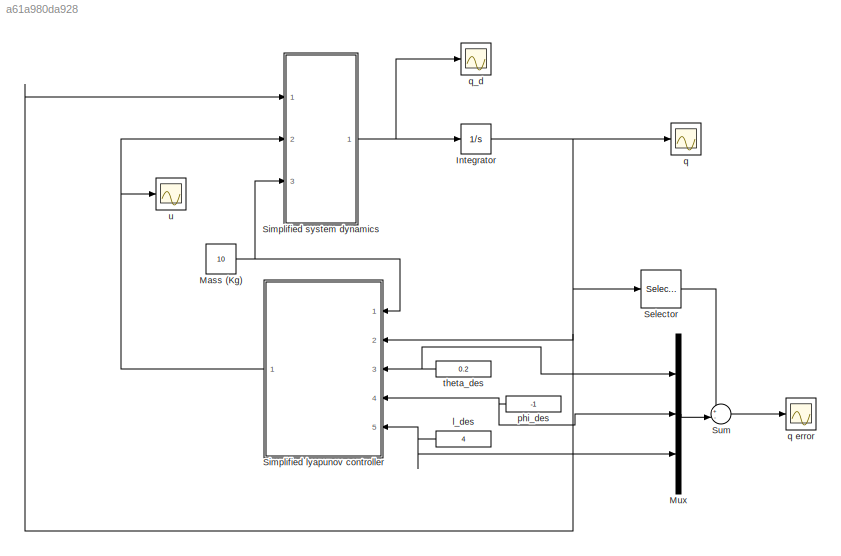
MODEL slx_a61a980da928
KIND model
CONFIG AbsTol = auto
CONFIG EnableMultiTasking = off
CONFIG FixedStep = auto
CONFIG MaxStep = auto
CONFIG MinStep = auto
CONFIG RelTol = 1e-3
CONFIG SampleTimeConstraint = Unconstrained
CONFIG Solver = VariableStepAuto
CONFIG SolverName = VariableStepAuto
CONFIG StartTime = 0.0
CONFIG StopTime = 10.0
BLOCK [Integrator] Integrator
  InitialCondition = [0.2, -0.4, 7, 1, -1, 0]
  Ports = [1, 1]
BLOCK [Constant] Mass (Kg)
  Value = 10
BLOCK [Mux] Mux
  DisplayOption = bar
  Inputs = 3
  Ports = [3, 1]
BLOCK [Selector] Selector
  IndexOptions = Index vector (dialog)
  Indices = [1 2 3]
  InputPortWidth = 6
  OutputSizes = 1
  Ports = [1, 1]
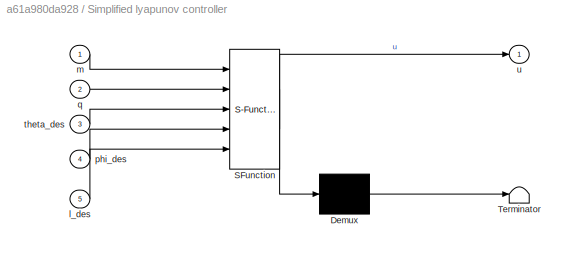
BLOCK [SubSystem] Simplified lyapunov controller
  ErrorFcn = Stateflow.Translate.translate
  PermitHierarchicalResolution = ExplicitOnly
  Ports = [5, 1]
  RequestExecContextInheritance = off
  SFBlockType = MATLAB Function
  TreatAsAtomicUnit = on
BLOCK [Demux] Simplified lyapunov controller/ Demux 
  Outputs = 1
  Ports = [1, 1]
BLOCK [S-Function] Simplified lyapunov controller/ SFunction 
  EnableBusSupport = on
  FunctionName = sf_sfun
  PortCounts = [5 2]
  Ports = [5, 2]
  SFcnIsStateOwnerBlock = off
  SFunctionDeploymentMode = off
  Tag = Stateflow S-Function 1
BLOCK [Terminator] Simplified lyapunov controller/ Terminator 
BLOCK [Inport] Simplified lyapunov controller/l_des
  Port = 5
BLOCK [Inport] Simplified lyapunov controller/m
BLOCK [Inport] Simplified lyapunov controller/phi_des
  Port = 4
BLOCK [Inport] Simplified lyapunov controller/q
  Port = 2
BLOCK [Inport] Simplified lyapunov controller/theta_des
  Port = 3
BLOCK [Outport] Simplified lyapunov controller/u
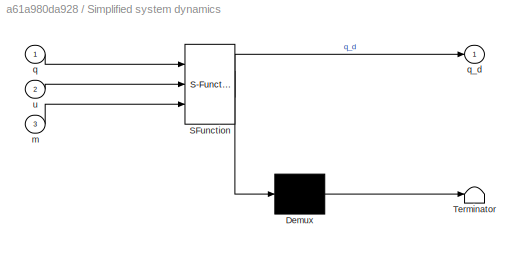
BLOCK [SubSystem] Simplified system dynamics
  ErrorFcn = Stateflow.Translate.translate
  PermitHierarchicalResolution = ExplicitOnly
  Ports = [3, 1]
  RequestExecContextInheritance = off
  SFBlockType = MATLAB Function
  TreatAsAtomicUnit = on
BLOCK [Demux] Simplified system dynamics/ Demux 
  Outputs = 1
  Ports = [1, 1]
BLOCK [S-Function] Simplified system dynamics/ SFunction 
  EnableBusSupport = on
  FunctionName = sf_sfun
  PortCounts = [3 2]
  Ports = [3, 2]
  SFcnIsStateOwnerBlock = off
  SFunctionDeploymentMode = off
  Tag = Stateflow S-Function 2
BLOCK [Terminator] Simplified system dynamics/ Terminator 
BLOCK [Inport] Simplified system dynamics/m
  Port = 3
BLOCK [Inport] Simplified system dynamics/q
BLOCK [Outport] Simplified system dynamics/q_d
BLOCK [Inport] Simplified system dynamics/u
  Port = 2
BLOCK [Sum] Sum
  Inputs = +-|
  Ports = [2, 1]
BLOCK [Constant] l_des
  Value = 4
BLOCK [Constant] phi_des
  Value = -1
BLOCK [Scope] q
  Floating = off
  NumInputPorts = 1
  Ports = [1]
  ScopeSpecificationString = Simulink.scopes.TimeScopeBlockCfg('CurrentConfiguration', extmgr.ConfigurationSet(extmgr.Configuration('Core','General UI',true),extmgr.Configuration('Core','Source UI',true),extmgr.Configuration('Sources','WiredSimulink',true),extmgr.Configuration('Visuals','Time Domain',true,'SerializedDisplays',{struct('MinYLimReal','-74051282.11979','MaxYLimReal','8227942.48762','YLabelReal','','MinYLimMag',' ...<+1671ch>
BLOCK [Scope] q error
  Floating = off
  NumInputPorts = 1
  Ports = [1]
  ScopeSpecificationString = Simulink.scopes.TimeScopeBlockCfg('CurrentConfiguration', extmgr.ConfigurationSet(extmgr.Configuration('Core','General UI',true),extmgr.Configuration('Core','Source UI',true),extmgr.Configuration('Sources','WiredSimulink',true,'DataLoggingVariableName','ScopeData3'),extmgr.Configuration('Visuals','Time Domain',true,'SerializedDisplays',{struct('MinYLimReal','-44.15868','MaxYLimReal','32.13248','YL...<+1667ch>
BLOCK [Scope] q_d
  Floating = off
  NumInputPorts = 1
  Ports = [1]
  ScopeSpecificationString = Simulink.scopes.TimeScopeBlockCfg('CurrentConfiguration', extmgr.ConfigurationSet(extmgr.Configuration('Core','General UI',true),extmgr.Configuration('Core','Source UI',true),extmgr.Configuration('Sources','WiredSimulink',true,'DataLoggingVariableName','ScopeData2'),extmgr.Configuration('Visuals','Time Domain',true,'SerializedDisplays',{struct('MinYLimReal','-449743341930.99884','MaxYLimReal','404...<+1749ch>
BLOCK [Constant] theta_des
  Value = 0.2
BLOCK [Scope] u
  Floating = off
  NumInputPorts = 1
  Ports = [1]
  ScopeSpecificationString = Simulink.scopes.TimeScopeBlockCfg('CurrentConfiguration', extmgr.ConfigurationSet(extmgr.Configuration('Core','General UI',true),extmgr.Configuration('Core','Source UI',true),extmgr.Configuration('Sources','WiredSimulink',true,'DataLoggingVariableName','ScopeData1'),extmgr.Configuration('Visuals','Time Domain',true,'SerializedDisplays',{struct('MinYLimReal','-16956721693282871017472.00000','MaxYLi...<+1780ch>
NET Integrator:1 -> Selector:1, Simplified lyapunov controller:2, Simplified system dynamics:1, q:1
NET Mass (Kg):1 -> Simplified lyapunov controller:1, Simplified system dynamics:3
LINE Mux:1 -> Sum:2
LINE Selector:1 -> Sum:1
NET Simplified lyapunov controller:1 -> Simplified system dynamics:2, u:1
NET Simplified system dynamics:1 -> Integrator:1, q_d:1
LINE Sum:1 -> q error:1
NET l_des:1 -> Mux:3, Simplified lyapunov controller:5
NET phi_des:1 -> Mux:2, Simplified lyapunov controller:4
NET theta_des:1 -> Mux:1, Simplified lyapunov controller:3
note: NET lines group one-source signal fan-out (src -> all destinations, sorted); 1:1 wires keep LINE
CHART Simplified lyapunov controller states=1 transitions=1
  STATE_LABEL 'eML_blk_kernel()'
  STATE_LABEL 'SCRIPT:\nfunction u = fcn(m, q, theta_des, phi_des, l_des)\n\ng = 9.8;   % m/s^2\n\n% Gains\nk_theta = 1;\nk_phi = 1;\nk_l = 1;\nk_omega = 1;\nk_psi = 1;\nk_r = 1;\n\n% State space variables\ntheta = q(1);\nphi = q(2);\nl = q(3);\nomega = q(4);\npsi = q(5);\nr = q(6);\n\nif abs(l - l_des) < 1e-2\n    Fr = 0;%sign(l - l_des);\nelse\n    % Desired trajectories\n    omega_des = -k_theta*(theta - theta_des);\n    psi_des = -k_...<+1522ch>'
CHART Simplified system dynamics states=1 transitions=1
  STATE_LABEL 'eML_blk_kernel()'
  STATE_LABEL 'SCRIPT:\nfunction q_d = fcn(q, u, m)\n\ng = 9.8;   % m/s^2\n\n% Inputs\nFr = u(1);\n\n% State space variables\ntheta = q(1);\nphi = q(2);\nl = q(3);\nomega = q(4);\npsi = q(5);\nr = q(6);\n\n% Dynamics\ntheta_p = omega;\nphi_p = psi;\nl_p = r;\nomega_p = - 2*omega*r/l + psi^2*sin(theta)*cos(theta) - g/l*sin(theta);\npsi_p = - 2*psi*r/l - 2*psi*omega*cos(theta)/sin(theta);\nr_p = l*(omega^2 + psi^2*sin(theta)^2) + g*cos...<+79ch>'
CHART  states=0 transitions=0
CHART  states=0 transitions=0
